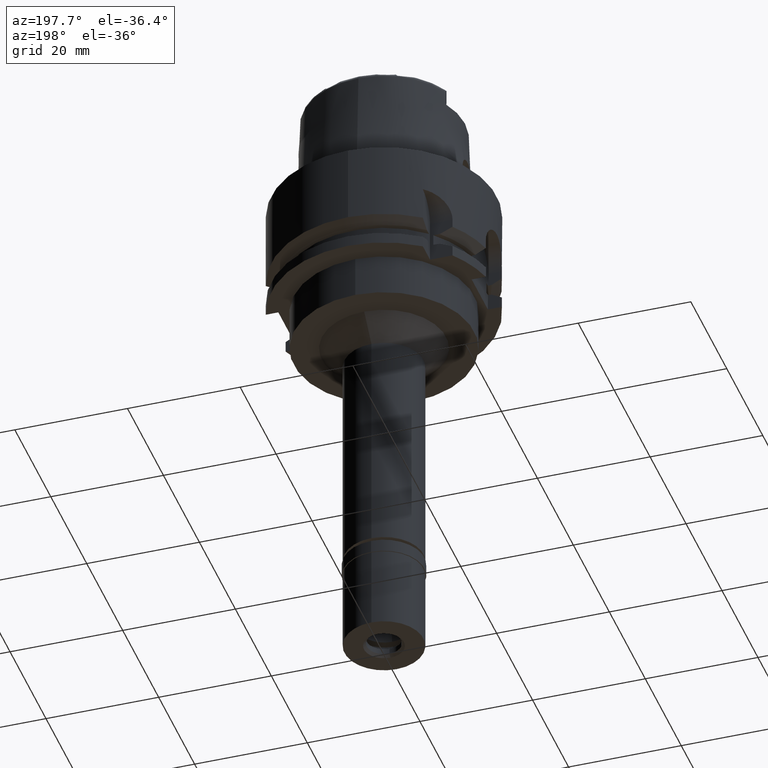
[diagram: clean part render]
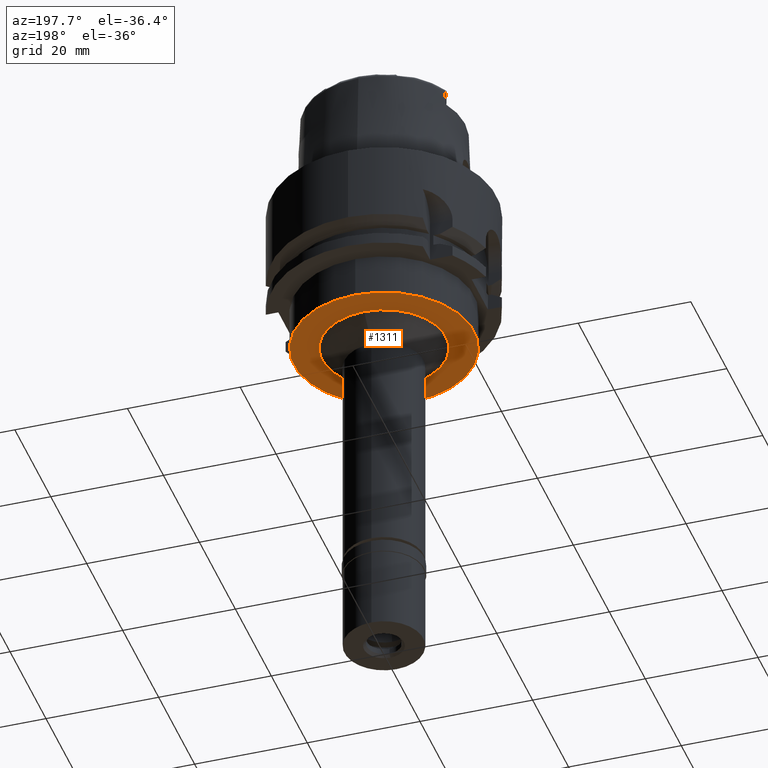
[diagram: same view with one face highlighted and labeled with its STEP entity id]
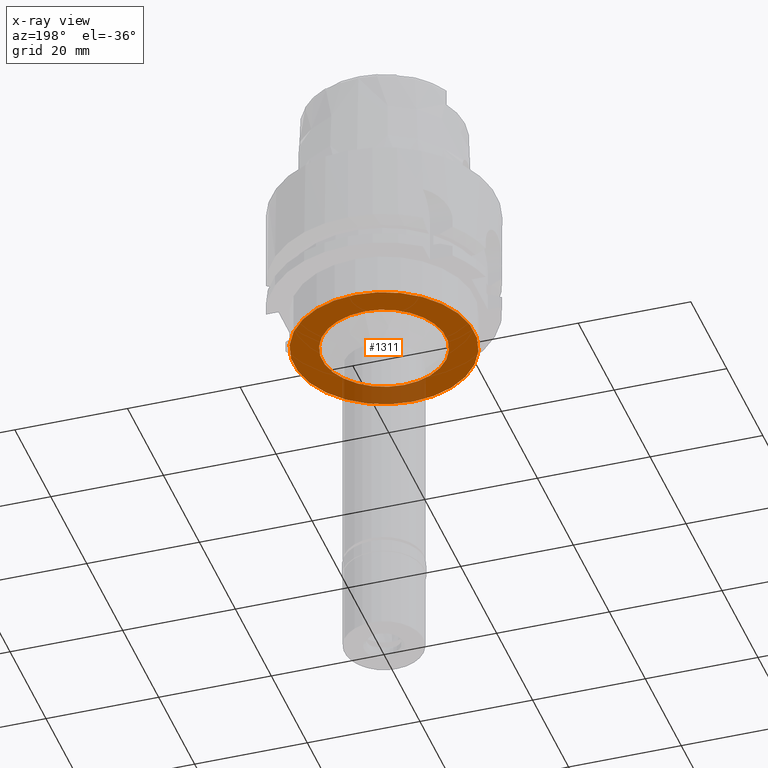
[diagram: x-ray of the same camera — body ghosted, the highlighted face saturated]
A machine part, auxiliary view. The second image highlights one B-rep face of the part: STEP entity #1311.
The next image is the same camera in x-ray: the body ghosted, the highlighted face saturated — about 17% of this face is hidden behind the body in this view.
In plain terms, the highlighted planar face has unit normal (0, 0, 1).
Its self-contained STEP definition (entity closure, byte-faithful):
#26 = EDGE_CURVE ( 'NONE', #4748, #918, #3342, .T. ) ;
#122 = PLANE ( 'NONE',  #2639 ) ;
#214 = EDGE_CURVE ( 'NONE', #918, #4748, #1710, .T. ) ;
#276 = CARTESIAN_POINT ( 'NONE',  ( 0.0000000000000000000, 0.0000000000000000000, -27.50000000000000000 ) ) ;
#418 = CARTESIAN_POINT ( 'NONE',  ( 0.0000000000000000000, -16.00000000000000000, -27.50000000000000000 ) ) ;
#537 = DIRECTION ( 'NONE',  ( 0.0000000000000000000, 0.0000000000000000000, -1.000000000000000000 ) ) ;
#568 = VERTEX_POINT ( 'NONE', #418 ) ;
#918 = VERTEX_POINT ( 'NONE', #4528 ) ;
#1271 = DIRECTION ( 'NONE',  ( 0.0000000000000000000, -1.000000000000000000, 0.0000000000000000000 ) ) ;
#1311 = ADVANCED_FACE ( 'NONE', ( #2170, #2571 ), #122, .F. ) ;
#1394 = VERTEX_POINT ( 'NONE', #4518 ) ;
#1434 = AXIS2_PLACEMENT_3D ( 'NONE', #4324, #3919, #3568 ) ;
#1710 = CIRCLE ( 'NONE', #1434, 11.00000000000000000 ) ;
#1767 = CIRCLE ( 'NONE', #4764, 16.00000000000000000 ) ;
#1865 = DIRECTION ( 'NONE',  ( 0.0000000000000000000, -1.000000000000000000, 0.0000000000000000000 ) ) ;
#1879 = AXIS2_PLACEMENT_3D ( 'NONE', #3814, #537, #1271 ) ;
#2023 = ORIENTED_EDGE ( 'NONE', *, *, #4796, .F. ) ;
#2146 = DIRECTION ( 'NONE',  ( 0.0000000000000000000, 0.0000000000000000000, 1.000000000000000000 ) ) ;
#2166 = EDGE_LOOP ( 'NONE', ( #4593, #3884 ) ) ;
#2170 = FACE_OUTER_BOUND ( 'NONE', #3296, .T. ) ;
#2177 = CIRCLE ( 'NONE', #2861, 16.00000000000000000 ) ;
#2571 = FACE_BOUND ( 'NONE', #2166, .T. ) ;
#2578 = EDGE_CURVE ( 'NONE', #568, #1394, #2177, .T. ) ;
#2639 = AXIS2_PLACEMENT_3D ( 'NONE', #4628, #2146, #3378 ) ;
#2723 = DIRECTION ( 'NONE',  ( 0.0000000000000000000, 0.0000000000000000000, 1.000000000000000000 ) ) ;
#2861 = AXIS2_PLACEMENT_3D ( 'NONE', #276, #4736, #1865 ) ;
#3178 = CARTESIAN_POINT ( 'NONE',  ( 0.0000000000000000000, 0.0000000000000000000, -27.50000000000000000 ) ) ;
#3296 = EDGE_LOOP ( 'NONE', ( #2023, #4963 ) ) ;
#3342 = CIRCLE ( 'NONE', #1879, 11.00000000000000000 ) ;
#3378 = DIRECTION ( 'NONE',  ( 1.000000000000000000, 0.0000000000000000000, 0.0000000000000000000 ) ) ;
#3568 = DIRECTION ( 'NONE',  ( 0.0000000000000000000, 1.000000000000000000, 0.0000000000000000000 ) ) ;
#3814 = CARTESIAN_POINT ( 'NONE',  ( 0.0000000000000000000, 0.0000000000000000000, -27.50000000000000000 ) ) ;
#3884 = ORIENTED_EDGE ( 'NONE', *, *, #26, .F. ) ;
#3919 = DIRECTION ( 'NONE',  ( 0.0000000000000000000, 0.0000000000000000000, -1.000000000000000000 ) ) ;
#4324 = CARTESIAN_POINT ( 'NONE',  ( 0.0000000000000000000, 0.0000000000000000000, -27.50000000000000000 ) ) ;
#4410 = DIRECTION ( 'NONE',  ( 0.0000000000000000000, 1.000000000000000000, 0.0000000000000000000 ) ) ;
#4518 = CARTESIAN_POINT ( 'NONE',  ( 0.0000000000000000000, 16.00000000000000000, -27.50000000000000000 ) ) ;
#4528 = CARTESIAN_POINT ( 'NONE',  ( 0.0000000000000000000, 11.00000000000000000, -27.50000000000000000 ) ) ;
#4593 = ORIENTED_EDGE ( 'NONE', *, *, #214, .F. ) ;
#4628 = CARTESIAN_POINT ( 'NONE',  ( 0.0000000000000000000, 0.0000000000000000000, -27.50000000000000000 ) ) ;
#4736 = DIRECTION ( 'NONE',  ( 0.0000000000000000000, 0.0000000000000000000, 1.000000000000000000 ) ) ;
#4748 = VERTEX_POINT ( 'NONE', #4978 ) ;
#4764 = AXIS2_PLACEMENT_3D ( 'NONE', #3178, #2723, #4410 ) ;
#4796 = EDGE_CURVE ( 'NONE', #1394, #568, #1767, .T. ) ;
#4963 = ORIENTED_EDGE ( 'NONE', *, *, #2578, .F. ) ;
#4978 = CARTESIAN_POINT ( 'NONE',  ( 0.0000000000000000000, -11.00000000000000000, -27.50000000000000000 ) ) ;